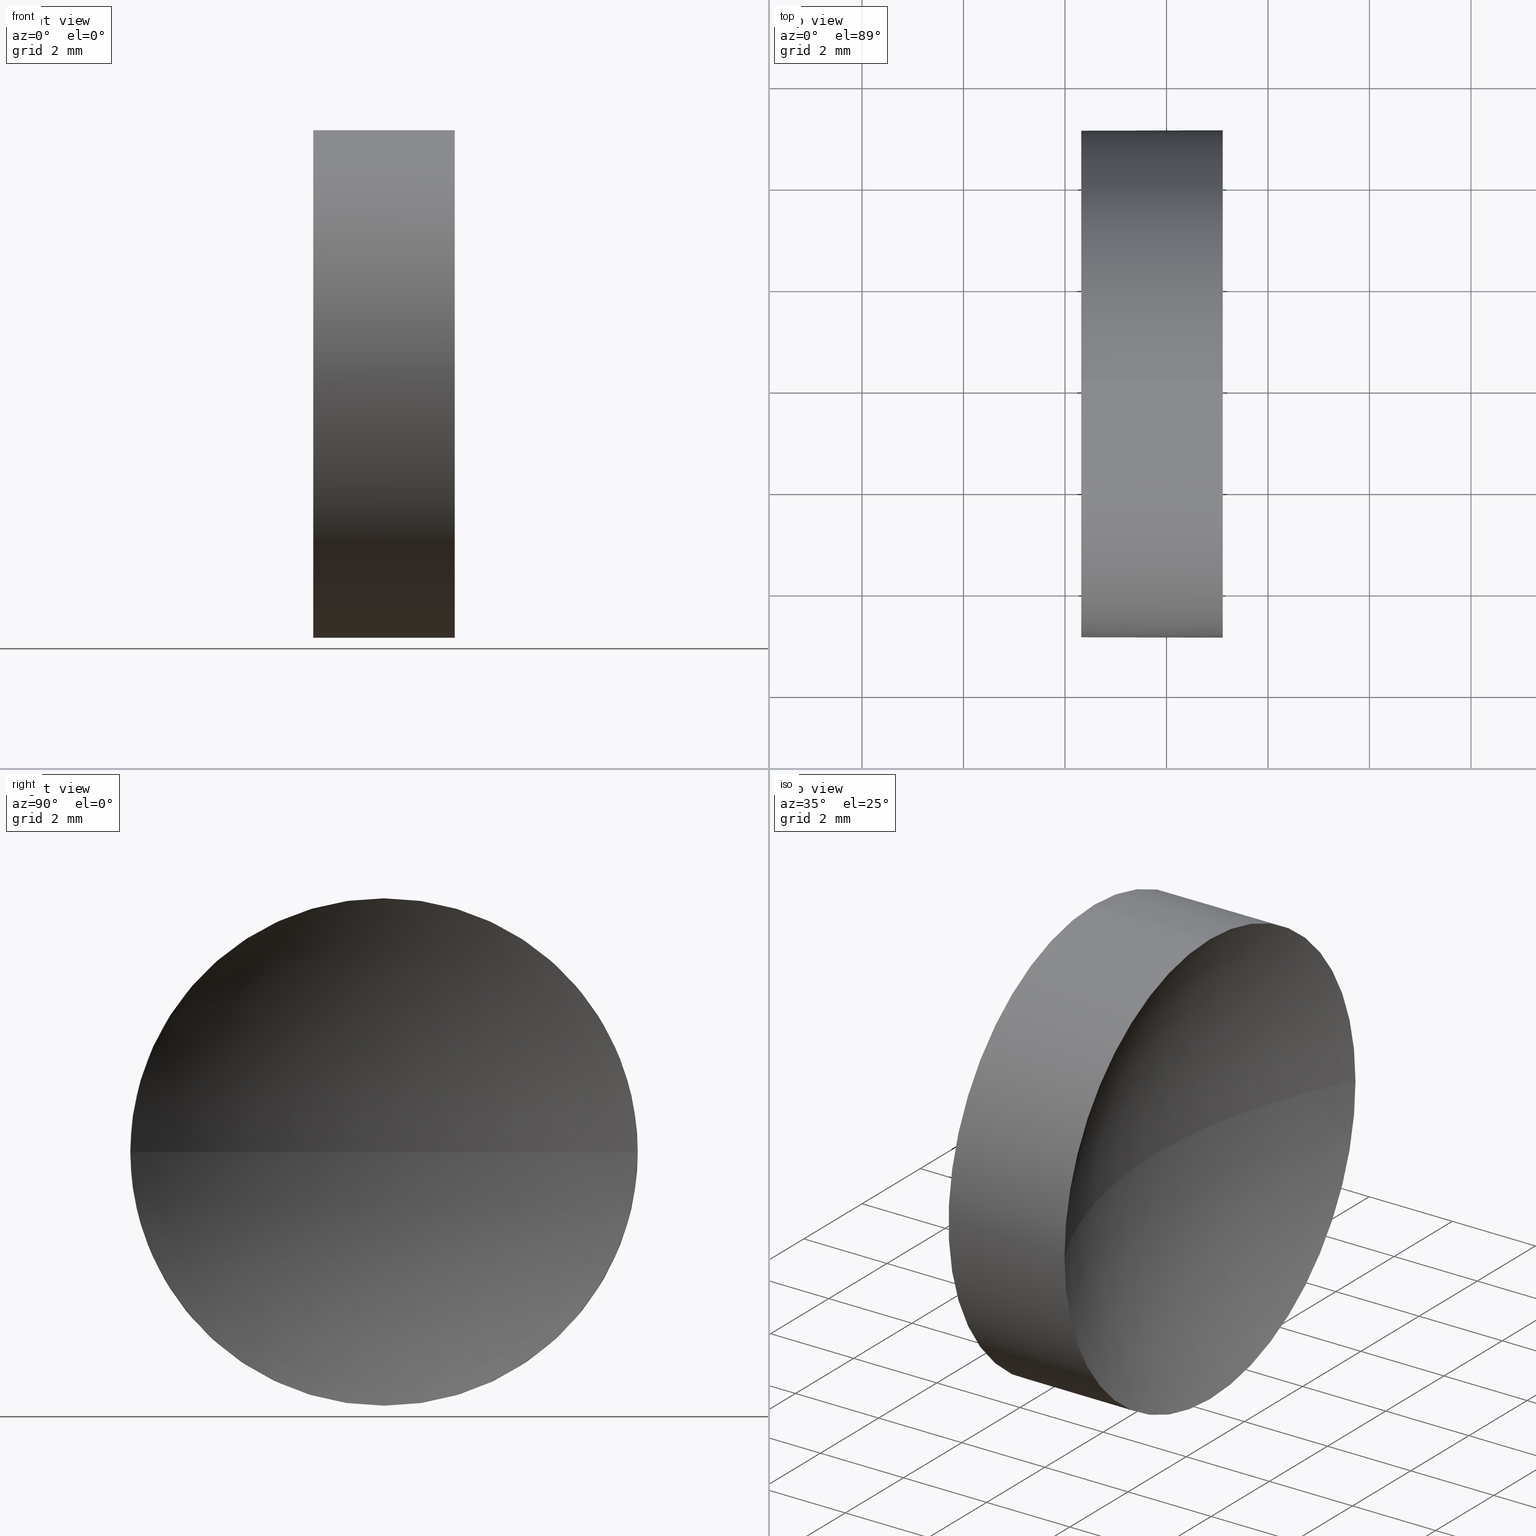
[diagram: canonical four-view strip — front | top / right | iso, engineering-drawing reading convention]
A machine part, canonical four-view strip (front | top / right | iso — engineering-drawing reading convention). The complete STEP part file that produces these views, byte-faithful:
ISO-10303-21;
HEADER;
FILE_DESCRIPTION (( 'STEP AP214' ),
    '1' );
FILE_NAME ('120012.STEP',
    '2019-06-14T05:28:55',
    ( '' ),
    ( '' ),
    'SwSTEP 2.0',
    'SolidWorks 2016',
    '' );
FILE_SCHEMA (( 'AUTOMOTIVE_DESIGN' ));
ENDSEC;

DATA;
#1 = CARTESIAN_POINT ( 'NONE',  ( 42.44986111413682300, 26.08904114919495900, 0.0000000000000000000 ) ) ;
#2 = EDGE_LOOP ( 'NONE', ( #91, #8, #127, #131, #171 ) ) ;
#3 = CARTESIAN_POINT ( 'NONE',  ( 56.15451910418161700, 26.08904114919495500, 0.0000000000000000000 ) ) ;
#4 =( LENGTH_UNIT ( ) NAMED_UNIT ( * ) SI_UNIT ( .MILLI., .METRE. ) );
#5 = PRODUCT ( '120012', '120012', '', ( #63 ) ) ;
#6 = EDGE_LOOP ( 'NONE', ( #57, #97, #117, #152 ) ) ;
#7 = DIRECTION ( 'NONE',  ( -1.000000000000000000, -0.0000000000000000000, -0.0000000000000000000 ) ) ;
#8 = ORIENTED_EDGE ( 'NONE', *, *, #37, .T. ) ;
#9 = VERTEX_POINT ( 'NONE', #184 ) ;
#10 = DIRECTION ( 'NONE',  ( 0.0000000000000000000, 0.0000000000000000000, 1.000000000000000000 ) ) ;
#11 = DIRECTION ( 'NONE',  ( 0.0000000000000000000, 1.000000000000000000, 0.0000000000000000000 ) ) ;
#12 = AXIS2_PLACEMENT_3D ( 'NONE', #52, #150, #67 ) ;
#13 = APPLICATION_CONTEXT ( 'automotive_design' ) ;
#14 = UNCERTAINTY_MEASURE_WITH_UNIT (LENGTH_MEASURE( 1.000000000000000100E-005 ), #4, 'distance_accuracy_value', 'NONE');
#15 = FILL_AREA_STYLE ('',( #177 ) ) ;
#16 = ORIENTED_EDGE ( 'NONE', *, *, #119, .T. ) ;
#17 = APPLICATION_CONTEXT ( 'automotive_design' ) ;
#18 = ORIENTED_EDGE ( 'NONE', *, *, #103, .T. ) ;
#19 = DIRECTION ( 'NONE',  ( 1.000000000000000000, 0.0000000000000000000, 0.0000000000000000000 ) ) ;
#20 = DIRECTION ( 'NONE',  ( 0.0000000000000000000, 0.0000000000000000000, 1.000000000000000000 ) ) ;
#21 = AXIS2_PLACEMENT_3D ( 'NONE', #93, #95, #32 ) ;
#22 = FACE_OUTER_BOUND ( 'NONE', #168, .T. ) ;
#23 = ADVANCED_FACE ( 'NONE', ( #36 ), #113, .F. ) ;
#24 = COLOUR_RGB ( '',1.000000000000000000, 1.000000000000000000, 1.000000000000000000 ) ;
#25 = DIRECTION ( 'NONE',  ( 0.0000000000000000000, 1.000000000000000000, 0.0000000000000000000 ) ) ;
#26 = UNCERTAINTY_MEASURE_WITH_UNIT (LENGTH_MEASURE( 1.000000000000000100E-005 ), #34, 'distance_accuracy_value', 'NONE');
#27 = LINE ( 'NONE', #172, #105 ) ;
#28 = CARTESIAN_POINT ( 'NONE',  ( 44.31958549791029600, 26.08904114919495900, -5.000000000000000900 ) ) ;
#29 = DIRECTION ( 'NONE',  ( 0.0000000000000000000, 1.000000000000000000, 1.224646799147353500E-016 ) ) ;
#30 =( NAMED_UNIT ( * ) PLANE_ANGLE_UNIT ( ) SI_UNIT ( $, .RADIAN. ) );
#31 = VERTEX_POINT ( 'NONE', #155 ) ;
#32 = DIRECTION ( 'NONE',  ( 0.0000000000000000000, 0.0000000000000000000, 1.000000000000000000 ) ) ;
#33 =( NAMED_UNIT ( * ) SI_UNIT ( $, .STERADIAN. ) SOLID_ANGLE_UNIT ( ) );
#34 =( LENGTH_UNIT ( ) NAMED_UNIT ( * ) SI_UNIT ( .MILLI., .METRE. ) );
#35 = PRESENTATION_LAYER_ASSIGNMENT (  '', '', ( #126 ) ) ;
#36 = FACE_OUTER_BOUND ( 'NONE', #38, .T. ) ;
#37 = EDGE_CURVE ( 'NONE', #83, #132, #79, .T. ) ;
#38 = EDGE_LOOP ( 'NONE', ( #87, #16 ) ) ;
#39 = EDGE_CURVE ( 'NONE', #31, #153, #27, .T. ) ;
#40 = DIRECTION ( 'NONE',  ( 0.0000000000000000000, 0.0000000000000000000, -1.000000000000000000 ) ) ;
#41 = SURFACE_STYLE_FILL_AREA ( #179 ) ;
#42 = PRODUCT_DEFINITION_CONTEXT ( 'detailed design', #13, 'design' ) ;
#43 = ADVANCED_FACE ( 'NONE', ( #181 ), #136, .F. ) ;
#44 = AXIS2_PLACEMENT_3D ( 'NONE', #49, #151, #29 ) ;
#45 = DIRECTION ( 'NONE',  ( 0.0000000000000000000, 0.0000000000000000000, 1.000000000000000000 ) ) ;
#46 = COLOUR_RGB ( '',1.000000000000000000, 1.000000000000000000, 1.000000000000000000 ) ;
#47 = DIRECTION ( 'NONE',  ( 0.0000000000000000000, 0.0000000000000000000, 1.000000000000000000 ) ) ;
#48 = DIRECTION ( 'NONE',  ( 1.000000000000000000, 0.0000000000000000000, 0.0000000000000000000 ) ) ;
#49 = CARTESIAN_POINT ( 'NONE',  ( 56.15451910418161700, 26.08904114919495500, 0.0000000000000000000 ) ) ;
#50 =( GEOMETRIC_REPRESENTATION_CONTEXT ( 3 ) GLOBAL_UNCERTAINTY_ASSIGNED_CONTEXT ( ( #106 ) ) GLOBAL_UNIT_ASSIGNED_CONTEXT ( ( #68, #30, #178 ) ) REPRESENTATION_CONTEXT ( 'NONE', 'WORKASPACE' ) );
#51 =( NAMED_UNIT ( * ) PLANE_ANGLE_UNIT ( ) SI_UNIT ( $, .RADIAN. ) );
#52 = CARTESIAN_POINT ( 'NONE',  ( 0.0000000000000000000, 0.0000000000000000000, 0.0000000000000000000 ) ) ;
#53 = CYLINDRICAL_SURFACE ( 'NONE', #102, 5.000000000000000900 ) ;
#54 = CLOSED_SHELL ( 'NONE', ( #56, #43, #115, #72, #23 ) ) ;
#55 = AXIS2_PLACEMENT_3D ( 'NONE', #3, #144, #25 ) ;
#56 = ADVANCED_FACE ( 'NONE', ( #22 ), #53, .T. ) ;
#57 = ORIENTED_EDGE ( 'NONE', *, *, #103, .F. ) ;
#58 = CIRCLE ( 'NONE', #129, 5.000000000000000900 ) ;
#59 = MECHANICAL_DESIGN_GEOMETRIC_PRESENTATION_REPRESENTATION (  '', ( #126 ), #135 ) ;
#60 = EDGE_CURVE ( 'NONE', #132, #31, #58, .T. ) ;
#61 = CARTESIAN_POINT ( 'NONE',  ( 47.10958549791029500, 26.08904114919495900, 0.0000000000000000000 ) ) ;
#62 = FILL_AREA_STYLE_COLOUR ( '', #24 ) ;
#63 = PRODUCT_CONTEXT ( 'NONE', #17, 'mechanical' ) ;
#64 = DIRECTION ( 'NONE',  ( 0.0000000000000000000, 0.0000000000000000000, 1.000000000000000000 ) ) ;
#65 = AXIS2_PLACEMENT_3D ( 'NONE', #1, #133, #45 ) ;
#66 = SURFACE_STYLE_FILL_AREA ( #15 ) ;
#67 = DIRECTION ( 'NONE',  ( 1.000000000000000000, 0.0000000000000000000, 0.0000000000000000000 ) ) ;
#68 =( LENGTH_UNIT ( ) NAMED_UNIT ( * ) SI_UNIT ( .MILLI., .METRE. ) );
#69 = FACE_OUTER_BOUND ( 'NONE', #6, .T. ) ;
#70 = APPLICATION_PROTOCOL_DEFINITION ( 'draft international standard', 'automotive_design', 1998, #13 ) ;
#71 = CIRCLE ( 'NONE', #170, 5.000000000000000900 ) ;
#72 = ADVANCED_FACE ( 'NONE', ( #108 ), #96, .T. ) ;
#73 = VERTEX_POINT ( 'NONE', #28 ) ;
#74 = ORIENTED_EDGE ( 'NONE', *, *, #60, .F. ) ;
#75 = DIRECTION ( 'NONE',  ( -1.000000000000000000, -0.0000000000000000000, -0.0000000000000000000 ) ) ;
#76 = SHAPE_DEFINITION_REPRESENTATION ( #85, #134 ) ;
#77 = EDGE_LOOP ( 'NONE', ( #74, #18, #116, #159 ) ) ;
#78 = CARTESIAN_POINT ( 'NONE',  ( 42.44986111413682300, 26.08904114919495900, 0.0000000000000000000 ) ) ;
#79 = CIRCLE ( 'NONE', #90, 5.000000000000000900 ) ;
#80 = CARTESIAN_POINT ( 'NONE',  ( 44.31958549791029600, 26.08904114919495900, 0.0000000000000000000 ) ) ;
#81 = CARTESIAN_POINT ( 'NONE',  ( 56.15451910418161700, 26.08904114919495500, 0.0000000000000000000 ) ) ;
#82 = CARTESIAN_POINT ( 'NONE',  ( 56.15451910418161700, 26.08904114919495500, 0.0000000000000000000 ) ) ;
#83 = VERTEX_POINT ( 'NONE', #104 ) ;
#84 = AXIS2_PLACEMENT_3D ( 'NONE', #100, #19, #40 ) ;
#85 = PRODUCT_DEFINITION_SHAPE ( 'NONE', 'NONE',  #167 ) ;
#86 = CIRCLE ( 'NONE', #21, 5.000000000000000900 ) ;
#87 = ORIENTED_EDGE ( 'NONE', *, *, #94, .T. ) ;
#88 = PRESENTATION_STYLE_ASSIGNMENT (( #92 ) ) ;
#89 = DIRECTION ( 'NONE',  ( -1.000000000000000000, -0.0000000000000000000, -0.0000000000000000000 ) ) ;
#90 = AXIS2_PLACEMENT_3D ( 'NONE', #182, #7, #20 ) ;
#91 = ORIENTED_EDGE ( 'NONE', *, *, #110, .F. ) ;
#92 = SURFACE_STYLE_USAGE ( .BOTH. , #122 ) ;
#93 = CARTESIAN_POINT ( 'NONE',  ( 47.10958549791029500, 26.08904114919495900, 0.0000000000000000000 ) ) ;
#94 = EDGE_CURVE ( 'NONE', #153, #73, #130, .T. ) ;
#95 = DIRECTION ( 'NONE',  ( -1.000000000000000000, -0.0000000000000000000, -0.0000000000000000000 ) ) ;
#96 = CYLINDRICAL_SURFACE ( 'NONE', #65, 5.000000000000000900 ) ;
#97 = ORIENTED_EDGE ( 'NONE', *, *, #37, .F. ) ;
#98 = DIRECTION ( 'NONE',  ( 0.0000000000000000000, 0.0000000000000000000, 1.000000000000000000 ) ) ;
#99 = CIRCLE ( 'NONE', #44, 10.33493221757435200 ) ;
#100 = CARTESIAN_POINT ( 'NONE',  ( 44.31958549791029600, 26.08904114919495900, 0.0000000000000000000 ) ) ;
#101 = STYLED_ITEM ( 'NONE', ( #183 ), #157 ) ;
#102 = AXIS2_PLACEMENT_3D ( 'NONE', #78, #75, #10 ) ;
#103 = EDGE_CURVE ( 'NONE', #132, #118, #99, .T. ) ;
#104 = CARTESIAN_POINT ( 'NONE',  ( 47.10958549791029500, 26.08904114919495900, -5.000000000000000900 ) ) ;
#105 = VECTOR ( 'NONE', #128, 1000.000000000000000 ) ;
#106 = UNCERTAINTY_MEASURE_WITH_UNIT (LENGTH_MEASURE( 1.000000000000000100E-005 ), #68, 'distance_accuracy_value', 'NONE');
#107 = CARTESIAN_POINT ( 'NONE',  ( 47.10958549791029500, 26.08904114919495900, 0.0000000000000000000 ) ) ;
#108 = FACE_OUTER_BOUND ( 'NONE', #2, .T. ) ;
#109 =( GEOMETRIC_REPRESENTATION_CONTEXT ( 3 ) GLOBAL_UNCERTAINTY_ASSIGNED_CONTEXT ( ( #26 ) ) GLOBAL_UNIT_ASSIGNED_CONTEXT ( ( #34, #51, #120 ) ) REPRESENTATION_CONTEXT ( 'NONE', 'WORKASPACE' ) );
#110 = EDGE_CURVE ( 'NONE', #83, #73, #142, .T. ) ;
#111 = APPLICATION_PROTOCOL_DEFINITION ( 'draft international standard', 'automotive_design', 1998, #17 ) ;
#112 = MECHANICAL_DESIGN_GEOMETRIC_PRESENTATION_REPRESENTATION (  '', ( #101 ), #50 ) ;
#113 = PLANE ( 'NONE',  #84 ) ;
#114 = AXIS2_PLACEMENT_3D ( 'NONE', #82, #137, #11 ) ;
#115 = ADVANCED_FACE ( 'NONE', ( #69 ), #158, .F. ) ;
#116 = ORIENTED_EDGE ( 'NONE', *, *, #143, .F. ) ;
#117 = ORIENTED_EDGE ( 'NONE', *, *, #154, .F. ) ;
#118 = VERTEX_POINT ( 'NONE', #145 ) ;
#119 = EDGE_CURVE ( 'NONE', #73, #153, #124, .T. ) ;
#120 =( NAMED_UNIT ( * ) SI_UNIT ( $, .STERADIAN. ) SOLID_ANGLE_UNIT ( ) );
#121 = CARTESIAN_POINT ( 'NONE',  ( 44.31958549791029600, 26.08904114919495900, 5.000000000000000900 ) ) ;
#122 = SURFACE_SIDE_STYLE ('',( #66 ) ) ;
#123 =( NAMED_UNIT ( * ) PLANE_ANGLE_UNIT ( ) SI_UNIT ( $, .RADIAN. ) );
#124 = CIRCLE ( 'NONE', #149, 5.000000000000000900 ) ;
#125 = ORIENTED_EDGE ( 'NONE', *, *, #39, .F. ) ;
#126 = STYLED_ITEM ( 'NONE', ( #88 ), #134 ) ;
#127 = ORIENTED_EDGE ( 'NONE', *, *, #60, .T. ) ;
#128 = DIRECTION ( 'NONE',  ( -1.000000000000000000, -0.0000000000000000000, -0.0000000000000000000 ) ) ;
#129 = AXIS2_PLACEMENT_3D ( 'NONE', #61, #175, #147 ) ;
#130 = CIRCLE ( 'NONE', #156, 5.000000000000000900 ) ;
#131 = ORIENTED_EDGE ( 'NONE', *, *, #39, .T. ) ;
#132 = VERTEX_POINT ( 'NONE', #180 ) ;
#133 = DIRECTION ( 'NONE',  ( -1.000000000000000000, -0.0000000000000000000, -0.0000000000000000000 ) ) ;
#134 = ADVANCED_BREP_SHAPE_REPRESENTATION ( '120012', ( #157, #12 ), #109 ) ;
#135 =( GEOMETRIC_REPRESENTATION_CONTEXT ( 3 ) GLOBAL_UNCERTAINTY_ASSIGNED_CONTEXT ( ( #14 ) ) GLOBAL_UNIT_ASSIGNED_CONTEXT ( ( #4, #123, #33 ) ) REPRESENTATION_CONTEXT ( 'NONE', 'WORKASPACE' ) );
#136 = SPHERICAL_SURFACE ( 'NONE', #55, 10.33493221757435200 ) ;
#137 = DIRECTION ( 'NONE',  ( 0.0000000000000000000, 0.0000000000000000000, -1.000000000000000000 ) ) ;
#138 = SURFACE_SIDE_STYLE ('',( #41 ) ) ;
#139 = DIRECTION ( 'NONE',  ( -1.000000000000000000, -0.0000000000000000000, -0.0000000000000000000 ) ) ;
#140 = AXIS2_PLACEMENT_3D ( 'NONE', #81, #148, #48 ) ;
#141 = PRESENTATION_LAYER_ASSIGNMENT (  '', '', ( #101 ) ) ;
#142 = LINE ( 'NONE', #162, #165 ) ;
#143 = EDGE_CURVE ( 'NONE', #9, #118, #185, .T. ) ;
#144 = DIRECTION ( 'NONE',  ( 0.0000000000000000000, 0.0000000000000000000, -1.000000000000000000 ) ) ;
#145 = CARTESIAN_POINT ( 'NONE',  ( 45.81958688660726200, 26.08904114919495500, 0.0000000000000000000 ) ) ;
#146 = ORIENTED_EDGE ( 'NONE', *, *, #160, .T. ) ;
#147 = DIRECTION ( 'NONE',  ( 0.0000000000000000000, 0.0000000000000000000, 1.000000000000000000 ) ) ;
#148 = DIRECTION ( 'NONE',  ( 0.0000000000000000000, 0.0000000000000000000, 1.000000000000000000 ) ) ;
#149 = AXIS2_PLACEMENT_3D ( 'NONE', #80, #139, #64 ) ;
#150 = DIRECTION ( 'NONE',  ( 0.0000000000000000000, 0.0000000000000000000, 1.000000000000000000 ) ) ;
#151 = DIRECTION ( 'NONE',  ( 0.0000000000000000000, 1.224646799147353200E-016, -1.000000000000000000 ) ) ;
#152 = ORIENTED_EDGE ( 'NONE', *, *, #143, .T. ) ;
#153 = VERTEX_POINT ( 'NONE', #121 ) ;
#154 = EDGE_CURVE ( 'NONE', #9, #83, #71, .T. ) ;
#155 = CARTESIAN_POINT ( 'NONE',  ( 47.10958549791029500, 26.08904114919495900, 5.000000000000000900 ) ) ;
#156 = AXIS2_PLACEMENT_3D ( 'NONE', #176, #89, #47 ) ;
#157 = MANIFOLD_SOLID_BREP ( '��ת1', #54 ) ;
#158 = SPHERICAL_SURFACE ( 'NONE', #114, 10.33493221757435200 ) ;
#159 = ORIENTED_EDGE ( 'NONE', *, *, #160, .F. ) ;
#160 = EDGE_CURVE ( 'NONE', #31, #9, #86, .T. ) ;
#161 = SURFACE_STYLE_USAGE ( .BOTH. , #138 ) ;
#162 = CARTESIAN_POINT ( 'NONE',  ( 42.44986111413682300, 26.08904114919495900, -5.000000000000000900 ) ) ;
#163 = PRODUCT_DEFINITION_FORMATION_WITH_SPECIFIED_SOURCE ( '�κ�', '', #5, .NOT_KNOWN. ) ;
#164 = DIRECTION ( 'NONE',  ( -1.000000000000000000, -0.0000000000000000000, -0.0000000000000000000 ) ) ;
#165 = VECTOR ( 'NONE', #166, 1000.000000000000000 ) ;
#166 = DIRECTION ( 'NONE',  ( -1.000000000000000000, -0.0000000000000000000, -0.0000000000000000000 ) ) ;
#167 = PRODUCT_DEFINITION ( 'δ֪', '', #163, #42 ) ;
#168 = EDGE_LOOP ( 'NONE', ( #173, #186, #174, #125, #146 ) ) ;
#169 = PRODUCT_RELATED_PRODUCT_CATEGORY ( 'part', '', ( #5 ) ) ;
#170 = AXIS2_PLACEMENT_3D ( 'NONE', #107, #164, #98 ) ;
#171 = ORIENTED_EDGE ( 'NONE', *, *, #119, .F. ) ;
#172 = CARTESIAN_POINT ( 'NONE',  ( 42.44986111413682300, 26.08904114919495900, 5.000000000000000900 ) ) ;
#173 = ORIENTED_EDGE ( 'NONE', *, *, #154, .T. ) ;
#174 = ORIENTED_EDGE ( 'NONE', *, *, #94, .F. ) ;
#175 = DIRECTION ( 'NONE',  ( -1.000000000000000000, -0.0000000000000000000, -0.0000000000000000000 ) ) ;
#176 = CARTESIAN_POINT ( 'NONE',  ( 44.31958549791029600, 26.08904114919495900, 0.0000000000000000000 ) ) ;
#177 = FILL_AREA_STYLE_COLOUR ( '', #46 ) ;
#178 =( NAMED_UNIT ( * ) SI_UNIT ( $, .STERADIAN. ) SOLID_ANGLE_UNIT ( ) );
#179 = FILL_AREA_STYLE ('',( #62 ) ) ;
#180 = CARTESIAN_POINT ( 'NONE',  ( 47.10958549791029500, 21.08904114919495100, -6.123233995736770200E-016 ) ) ;
#181 = FACE_OUTER_BOUND ( 'NONE', #77, .T. ) ;
#182 = CARTESIAN_POINT ( 'NONE',  ( 47.10958549791029500, 26.08904114919495900, 0.0000000000000000000 ) ) ;
#183 = PRESENTATION_STYLE_ASSIGNMENT (( #161 ) ) ;
#184 = CARTESIAN_POINT ( 'NONE',  ( 47.10958549791029500, 31.08904114919496200, 0.0000000000000000000 ) ) ;
#185 = CIRCLE ( 'NONE', #140, 10.33493221757434600 ) ;
#186 = ORIENTED_EDGE ( 'NONE', *, *, #110, .T. ) ;
ENDSEC;
END-ISO-10303-21;
